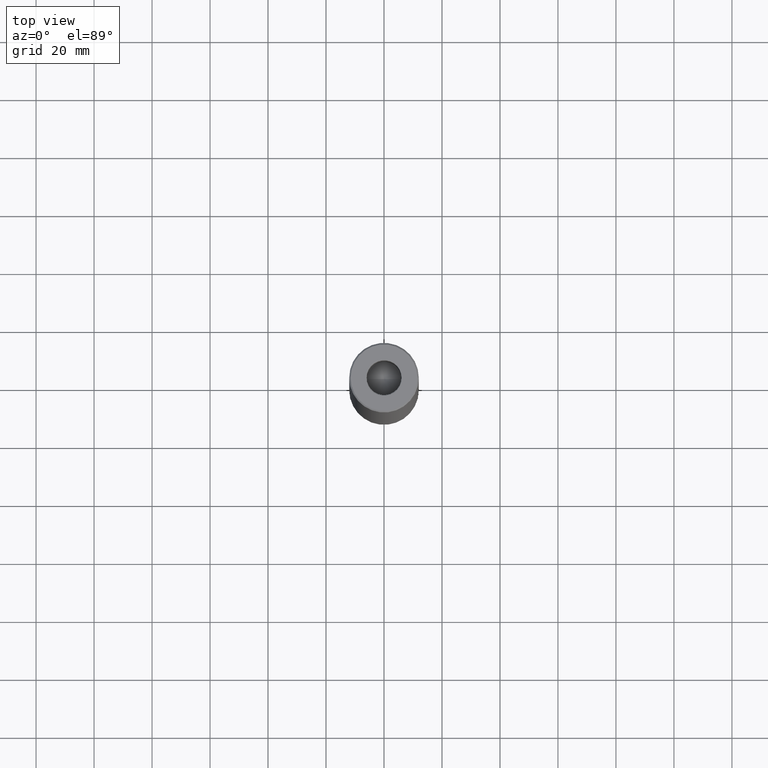
[diagram: clean part render]
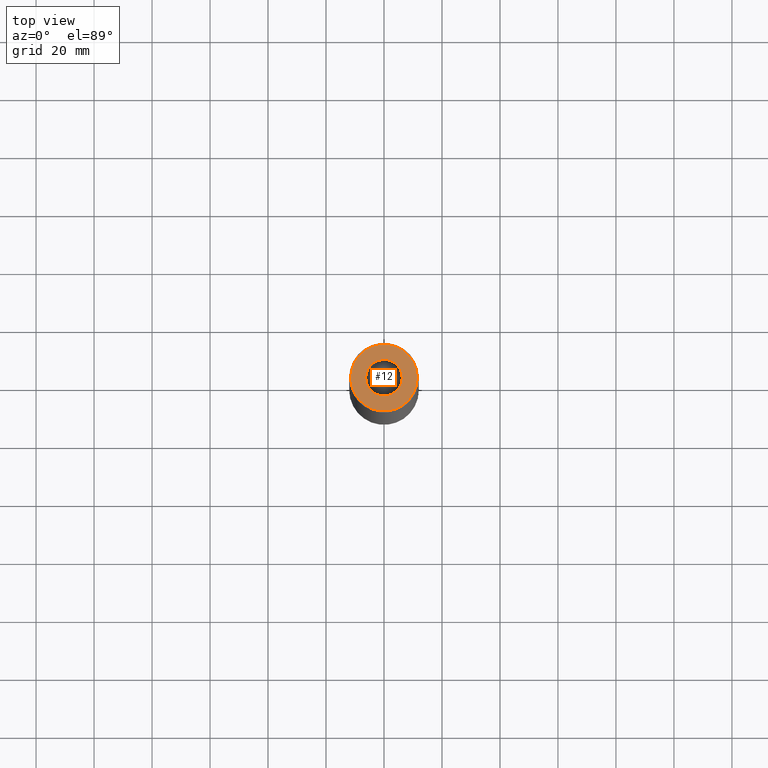
[diagram: same view with one face highlighted and labeled with its STEP entity id]
A machine part, top view. The second image highlights one B-rep face of the part: STEP entity #12.
In plain terms, the highlighted planar face has unit normal (0, -0, 1).
Its self-contained STEP definition (entity closure, byte-faithful):
#12 = ADVANCED_FACE ( 'NONE', ( #386, #379 ), #484, .T. ) ;
#17 = AXIS2_PLACEMENT_3D ( 'NONE', #446, #162, #455 ) ;
#37 = EDGE_LOOP ( 'NONE', ( #179, #274 ) ) ;
#48 = CIRCLE ( 'NONE', #528, 6.299999999999996270 ) ;
#50 = CARTESIAN_POINT ( 'NONE',  ( -6.299999999999996270, 7.715274834628322420E-16, 0.000000000000000000 ) ) ;
#58 = AXIS2_PLACEMENT_3D ( 'NONE', #294, #437, #348 ) ;
#79 = DIRECTION ( 'NONE',  ( 1.000000000000000000, 0.000000000000000000, 0.000000000000000000 ) ) ;
#80 = VERTEX_POINT ( 'NONE', #235 ) ;
#87 = CARTESIAN_POINT ( 'NONE',  ( 0.000000000000000000, 0.000000000000000000, 0.000000000000000000 ) ) ;
#97 = DIRECTION ( 'NONE',  ( 0.000000000000000000, 0.000000000000000000, -1.000000000000000000 ) ) ;
#103 = CARTESIAN_POINT ( 'NONE',  ( -11.50000000000000888, 0.000000000000000000, 0.000000000000000000 ) ) ;
#120 = EDGE_CURVE ( 'NONE', #327, #133, #449, .T. ) ;
#131 = CARTESIAN_POINT ( 'NONE',  ( 0.000000000000000000, 0.000000000000000000, 0.000000000000000000 ) ) ;
#133 = VERTEX_POINT ( 'NONE', #50 ) ;
#162 = DIRECTION ( 'NONE',  ( -0.000000000000000000, -0.000000000000000000, 1.000000000000000000 ) ) ;
#179 = ORIENTED_EDGE ( 'NONE', *, *, #560, .T. ) ;
#214 = VERTEX_POINT ( 'NONE', #103 ) ;
#235 = CARTESIAN_POINT ( 'NONE',  ( 11.50000000000000888, 1.438959988998140752E-15, 0.000000000000000000 ) ) ;
#261 = EDGE_CURVE ( 'NONE', #80, #214, #420, .T. ) ;
#274 = ORIENTED_EDGE ( 'NONE', *, *, #261, .T. ) ;
#292 = DIRECTION ( 'NONE',  ( 0.000000000000000000, -0.000000000000000000, 1.000000000000000000 ) ) ;
#294 = CARTESIAN_POINT ( 'NONE',  ( 0.000000000000000000, 0.000000000000000000, 0.000000000000000000 ) ) ;
#311 = ORIENTED_EDGE ( 'NONE', *, *, #120, .T. ) ;
#327 = VERTEX_POINT ( 'NONE', #475 ) ;
#348 = DIRECTION ( 'NONE',  ( 1.000000000000000000, 0.000000000000000000, 0.000000000000000000 ) ) ;
#379 = FACE_OUTER_BOUND ( 'NONE', #37, .T. ) ;
#386 = FACE_BOUND ( 'NONE', #625, .T. ) ;
#411 = ORIENTED_EDGE ( 'NONE', *, *, #435, .T. ) ;
#420 = CIRCLE ( 'NONE', #17, 11.50000000000000888 ) ;
#435 = EDGE_CURVE ( 'NONE', #133, #327, #48, .T. ) ;
#437 = DIRECTION ( 'NONE',  ( -0.000000000000000000, -0.000000000000000000, 1.000000000000000000 ) ) ;
#446 = CARTESIAN_POINT ( 'NONE',  ( 0.000000000000000000, 0.000000000000000000, 0.000000000000000000 ) ) ;
#449 = CIRCLE ( 'NONE', #562, 6.299999999999996270 ) ;
#455 = DIRECTION ( 'NONE',  ( 1.000000000000000000, 0.000000000000000000, 0.000000000000000000 ) ) ;
#475 = CARTESIAN_POINT ( 'NONE',  ( 6.299999999999996270, 0.000000000000000000, 0.000000000000000000 ) ) ;
#481 = DIRECTION ( 'NONE',  ( 0.000000000000000000, 0.000000000000000000, -1.000000000000000000 ) ) ;
#484 = PLANE ( 'NONE',  #629 ) ;
#489 = DIRECTION ( 'NONE',  ( 1.000000000000000000, 0.000000000000000000, 0.000000000000000000 ) ) ;
#528 = AXIS2_PLACEMENT_3D ( 'NONE', #131, #481, #576 ) ;
#560 = EDGE_CURVE ( 'NONE', #214, #80, #611, .T. ) ;
#562 = AXIS2_PLACEMENT_3D ( 'NONE', #87, #97, #489 ) ;
#576 = DIRECTION ( 'NONE',  ( 1.000000000000000000, 0.000000000000000000, 0.000000000000000000 ) ) ;
#582 = CARTESIAN_POINT ( 'NONE',  ( 0.000000000000000000, 0.000000000000000000, 0.000000000000000000 ) ) ;
#611 = CIRCLE ( 'NONE', #58, 11.50000000000000888 ) ;
#625 = EDGE_LOOP ( 'NONE', ( #311, #411 ) ) ;
#629 = AXIS2_PLACEMENT_3D ( 'NONE', #582, #292, #79 ) ;